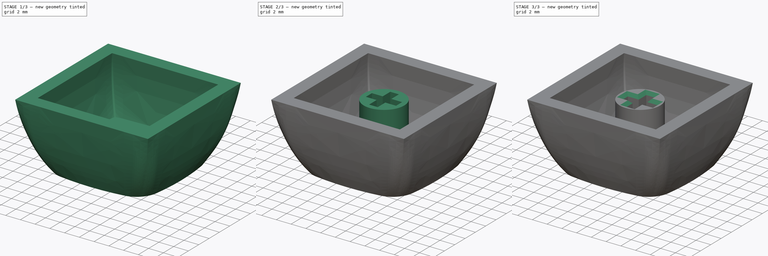
[diagram: build sequence overview — one tinted view per stage of 3, left to right]
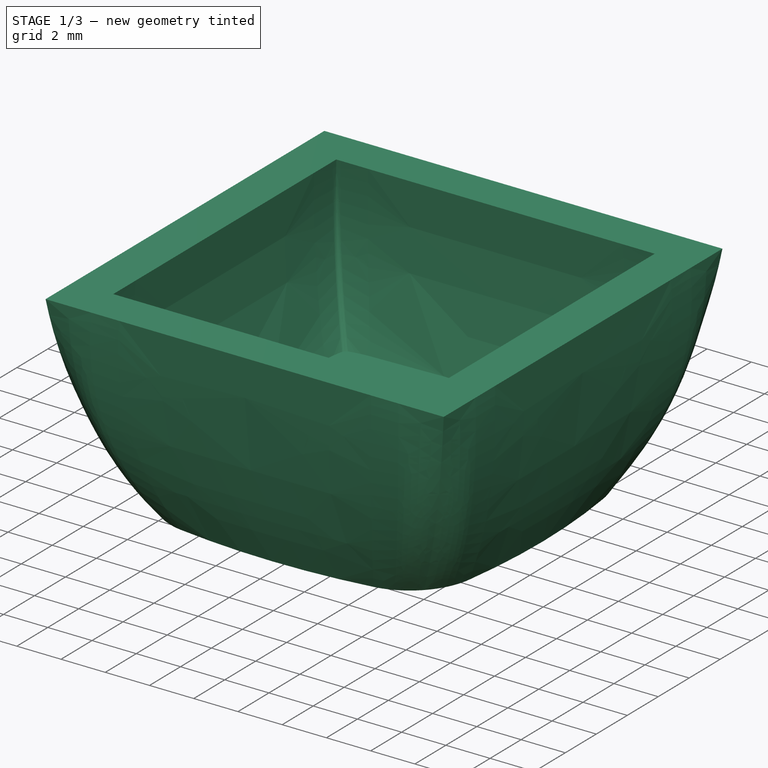
[diagram: stage 1 of 3 — iso view after this stage's code; geometry added in this stage tinted green]
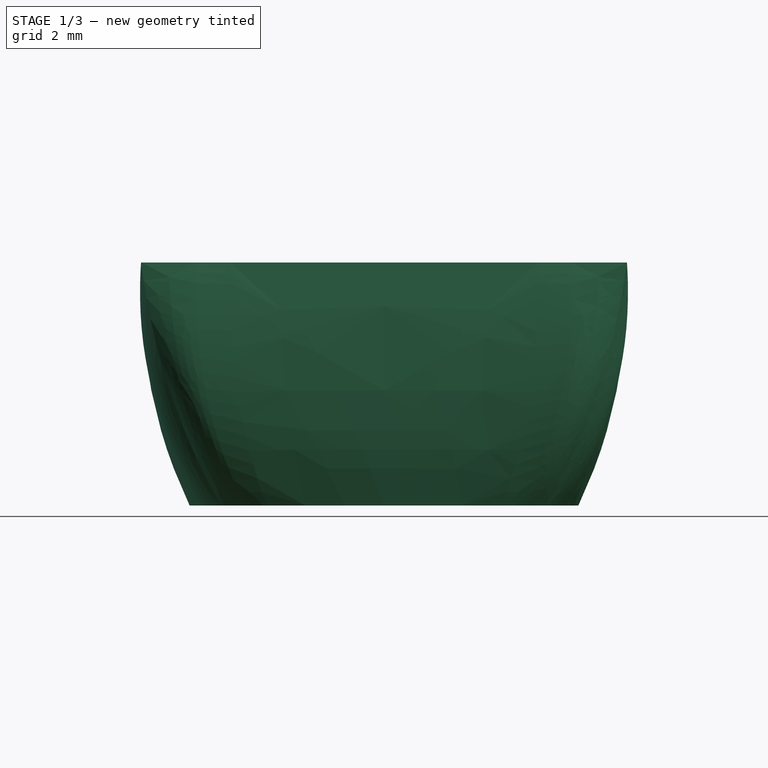
[diagram: stage 1 of 3 — front view after this stage's code; geometry added in this stage tinted green]
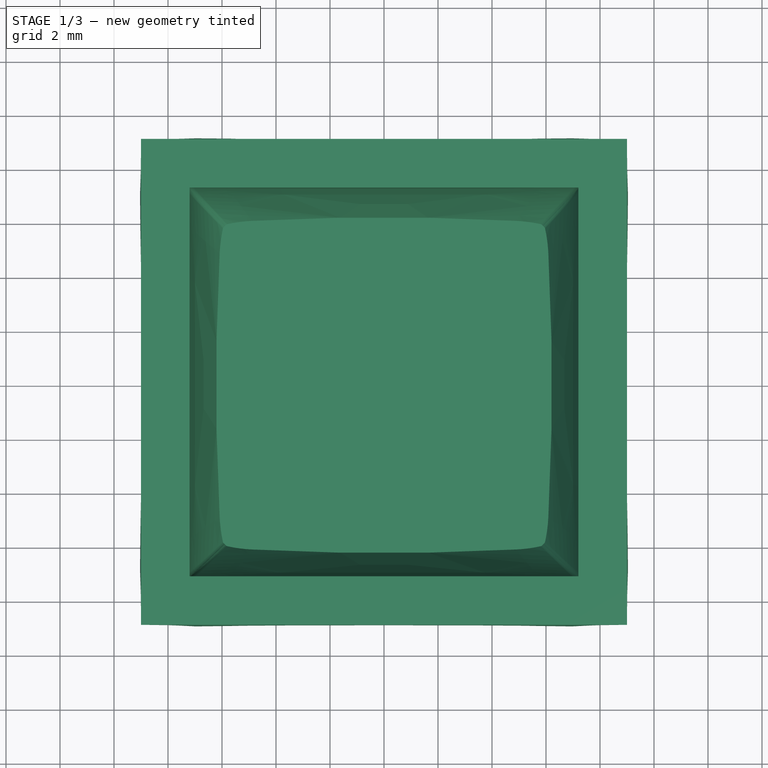
[diagram: stage 1 of 3 — top view after this stage's code; geometry added in this stage tinted green]
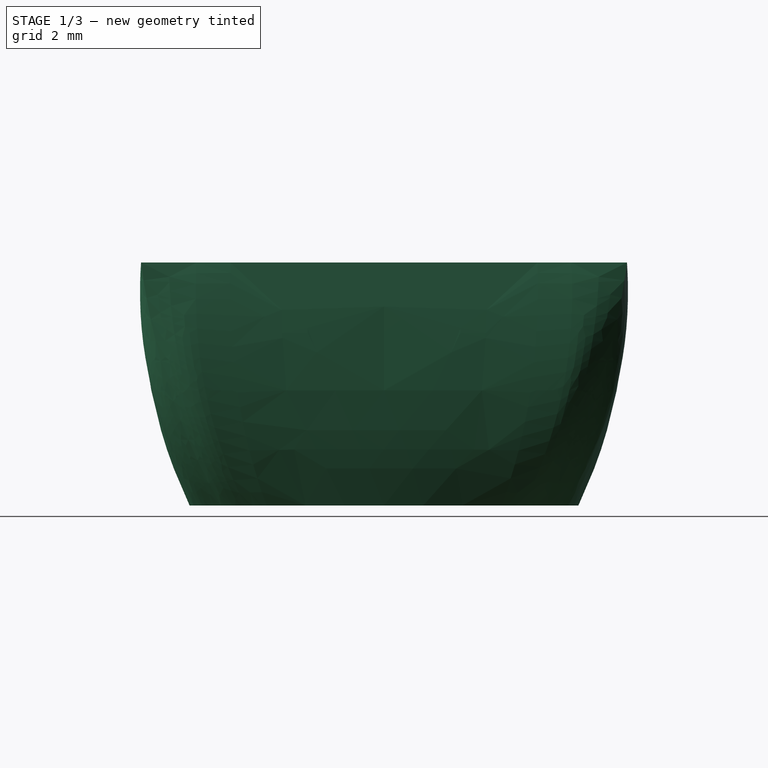
[diagram: stage 1 of 3 — right view after this stage's code; geometry added in this stage tinted green]
FCSTD DOCUMENT  (FreeCAD 1.0R38641 +678 (Git))
Label: keycap
License: All rights reserved
LicenseURL: https://en.wikipedia.org/wiki/All_rights_reserved
objects: Sketcher::SketchObject×5, PartDesign::Plane×2, PartDesign::Pad×2, PartDesign::Chamfer×2, PartDesign::AdditiveLoft×1, PartDesign::Body×1
note: 28 computed .brp shape members not serialized (recipe doc carries the construction recipe); baked Part::Feature solids carry a one-line shape summary decoded from their .brp

FEATURE [Sketcher::SketchObject] Sketch
  ArcFitTolerance = 1e-06
  AttachmentSupport = -> [XY_Plane]
  FullyConstrained = true
  MakeInternals = false
  MapMode = 5
  sketch-geometry (15):
    g0: LineSegment [constr] StartX=3.9147 StartY=3.9147 StartZ=0 EndX=-3.9147 EndY=3.9147 EndZ=0
    g1: LineSegment [constr] StartX=-3.9147 StartY=3.9147 StartZ=0 EndX=-3.9147 EndY=-3.9147 EndZ=0
    g2: LineSegment [constr] StartX=-3.9147 StartY=-3.9147 StartZ=0 EndX=3.9147 EndY=-3.9147 EndZ=0
    g3: LineSegment [constr] StartX=3.9147 StartY=-3.9147 StartZ=0 EndX=3.9147 EndY=3.9147 EndZ=0
    g4: GeomPoint [constr] X=0 Y=0 Z=0
    g5: ArcOfCircle CenterX=-3.9147 CenterY=3.9147 CenterZ=0 NormalX=0 NormalY=0 NormalZ=1 AngleXU=0 Radius=3 StartAngle=1.7163 EndAngle=2.99609
    g6: ArcOfCircle CenterX=22.8 CenterY=0 CenterZ=0 NormalX=0 NormalY=0 NormalZ=1 AngleXU=0 Radius=30 StartAngle=2.99609 EndAngle=3.28709
    g7: ArcOfCircle CenterX=-3.9147 CenterY=-3.9147 CenterZ=0 NormalX=0 NormalY=0 NormalZ=1 AngleXU=0 Radius=3 StartAngle=3.28709 EndAngle=4.56689
    g8: ArcOfCircle CenterX=-22.8 CenterY=0 CenterZ=0 NormalX=0 NormalY=0 NormalZ=1 AngleXU=0 Radius=30 StartAngle=6.13768 EndAngle=6.42869
    g9: ArcOfCircle CenterX=3.9147 CenterY=3.9147 CenterZ=0 NormalX=0 NormalY=0 NormalZ=1 AngleXU=0 Radius=3 StartAngle=0.145502 EndAngle=1.42529
    g10: GeomPoint X=-7.2 Y=0 Z=0
    g11: GeomPoint X=7.2 Y=0 Z=0
    g12: ArcOfCircle CenterX=3.9147 CenterY=-3.9147 CenterZ=0 NormalX=0 NormalY=0 NormalZ=1 AngleXU=0 Radius=3 StartAngle=4.85789 EndAngle=6.13768
    g13: ArcOfCircle CenterX=0 CenterY=-22.8 CenterZ=0 NormalX=0 NormalY=0 NormalZ=1 AngleXU=0 Radius=30 StartAngle=1.42529 EndAngle=1.7163
    g14: ArcOfCircle CenterX=0 CenterY=22.8 CenterZ=0 NormalX=0 NormalY=0 NormalZ=1 AngleXU=0 Radius=30 StartAngle=4.56689 EndAngle=4.85789
  constraints (40):
    c: Coincident(g0,g1)
    c: Coincident(g1,g2)
    c: Coincident(g2,g3)
    c: Coincident(g3,g0)
    c: Horizontal(g0)
    c: Horizontal(g2)
    c: Vertical(g1)
    c: Vertical(g3)
    c: Symmetric(g2,g0,g4)
    c: Coincident(g4,g-1)
    c: Equal(g1,g0)
    c: Coincident(g5,g0)
    c: PointOnObject(g6,g-1)
    c: Tangent(g6,g5) = -1.5708
    c: Coincident(g7,g1)
    c: Equal(g5,g7)
    c: Coincident(g6,g7)
    c: PointOnObject(g8,g-1)
    c: Equal(g6,g8)
    c: Coincident(g9,g0)
    c: Equal(g5,g9)
    c: Tangent(g9,g8) = -1.5708
    c: PointOnObject(g10,g6)
    c: PointOnObject(g10,g-1)
    c: PointOnObject(g11,g8)
    c: PointOnObject(g11,g-1)
    c: Radius(g5) = 3
    c: Distance(g11,g10) = 14.4
    c: Equal(g12,g7)
    c: Coincident(g12,g2)
    c: Coincident(g12,g8)
    c: PointOnObject(g13,g-2)
    c: Equal(g6,g13)
    c: Tangent(g13,g5) = -1.5708
    c: Coincident(g9,g13)
    c: PointOnObject(g14,g-2)
    c: Equal(g13,g14)
    c: Tangent(g14,g7) = -1.5708
    c: Coincident(g12,g14)
    c: Radius(g13) = 30
FEATURE [PartDesign::Plane] DatumPlane
  AttachmentOffset = pos=(0,0,5) rot=(0,0,1;0rad)
  AttachmentSupport = -> [XY_Plane]
  Length = 60
  MapMode = 2
  Placement = pos=(0,0,5) rot=(0,0,1;0rad)
  ResizeMode = 0
  Width = 60
FEATURE [PartDesign::Plane] DatumPlane001
  AttachmentOffset = pos=(0,0,9) rot=(0,0,1;0rad)
  AttachmentSupport = -> [XY_Plane]
  Length = 60
  MapMode = 5
  Placement = pos=(0,0,9) rot=(0,0,1;0rad)
  ResizeMode = 0
  Width = 60
FEATURE [Sketcher::SketchObject] Sketch001  label="middle"
  ArcFitTolerance = 1e-06
  AttachmentSupport = -> [DatumPlane]
  FullyConstrained = true
  MakeInternals = false
  MapMode = 5
  Placement = pos=(0,0,5) rot=(0,0,1;0rad)
  sketch-geometry (26):
    g0: LineSegment StartX=6.75 StartY=8.75 StartZ=0 EndX=-6.75 EndY=8.75 EndZ=0
    g1: LineSegment StartX=-8.75 StartY=6.75 StartZ=0 EndX=-8.75 EndY=-6.75 EndZ=0
    g2: LineSegment StartX=-6.75 StartY=-8.75 StartZ=0 EndX=6.75 EndY=-8.75 EndZ=0
    g3: LineSegment StartX=8.75 StartY=-6.75 StartZ=0 EndX=8.75 EndY=6.75 EndZ=0
    g4: GeomPoint [constr] X=0 Y=0 Z=0
    g5: ArcOfCircle CenterX=-6.75 CenterY=6.75 CenterZ=0 NormalX=0 NormalY=0 NormalZ=1 AngleXU=0 Radius=2 StartAngle=1.5708 EndAngle=3.14159
    g6: GeomPoint [constr] X=-8.75 Y=8.75 Z=0
    g7: ArcOfCircle CenterX=6.75 CenterY=6.75 CenterZ=0 NormalX=0 NormalY=0 NormalZ=1 AngleXU=0 Radius=2 StartAngle=0 EndAngle=1.5708
    g8: GeomPoint [constr] X=8.75 Y=8.75 Z=0
    g9: ArcOfCircle CenterX=6.75 CenterY=-6.75 CenterZ=0 NormalX=0 NormalY=0 NormalZ=1 AngleXU=0 Radius=2 StartAngle=4.71239 EndAngle=6.28319
    g10: GeomPoint [constr] X=8.75 Y=-8.75 Z=0
    g11: ArcOfCircle CenterX=-6.75 CenterY=-6.75 CenterZ=0 NormalX=0 NormalY=0 NormalZ=1 AngleXU=0 Radius=2 StartAngle=3.14159 EndAngle=4.71239
    g12: GeomPoint [constr] X=-8.75 Y=-8.75 Z=0
    g13: LineSegment StartX=6.75 StartY=6.95 StartZ=0 EndX=-6.75 EndY=6.95 EndZ=0
    g14: LineSegment StartX=-6.95 StartY=6.75 StartZ=0 EndX=-6.95 EndY=-6.75 EndZ=0
    g15: LineSegment StartX=-6.75 StartY=-6.95 StartZ=0 EndX=6.75 EndY=-6.95 EndZ=0
    g16: LineSegment StartX=6.95 StartY=-6.75 StartZ=0 EndX=6.95 EndY=6.75 EndZ=0
    g17: GeomPoint [constr] X=0 Y=0 Z=0
    g18: ArcOfCircle CenterX=-6.75 CenterY=6.75 CenterZ=0 NormalX=0 NormalY=0 NormalZ=1 AngleXU=0 Radius=0.2 StartAngle=1.5708 EndAngle=3.14159
    g19: GeomPoint [constr] X=-6.95 Y=6.95 Z=0
    g20: ArcOfCircle CenterX=6.75 CenterY=6.75 CenterZ=0 NormalX=0 NormalY=0 NormalZ=1 AngleXU=0 Radius=0.2 StartAngle=5.0196e-11 EndAngle=1.5708
    g21: GeomPoint [constr] X=6.95 Y=6.95 Z=0
    g22: ArcOfCircle CenterX=6.75 CenterY=-6.75 CenterZ=0 NormalX=0 NormalY=0 NormalZ=1 AngleXU=0 Radius=0.2 StartAngle=4.71239 EndAngle=6.28319
    g23: GeomPoint [constr] X=6.95 Y=-6.95 Z=0
    g24: ArcOfCircle CenterX=-6.75 CenterY=-6.75 CenterZ=0 NormalX=0 NormalY=0 NormalZ=1 AngleXU=0 Radius=0.2 StartAngle=3.14159 EndAngle=4.71239
    g25: GeomPoint [constr] X=-6.95 Y=-6.95 Z=0
  constraints (56):
    c: Horizontal(g0)
    c: Horizontal(g2)
    c: Vertical(g1)
    c: Vertical(g3)
    c: Symmetric(g12,g8,g4)
    c: Coincident(g4,g-1)
    c: PointOnObject(g6,g0)
    c: PointOnObject(g6,g1)
    c: Tangent(g0,g5) = -1.5708
    c: Tangent(g1,g5) = -1.5708
    c: PointOnObject(g8,g0)
    c: PointOnObject(g8,g3)
    c: Tangent(g0,g7) = -1.5708
    c: Tangent(g3,g7) = -1.5708
    c: PointOnObject(g10,g3)
    c: PointOnObject(g10,g2)
    c: Tangent(g3,g9) = -1.5708
    c: Tangent(g2,g9) = -1.5708
    c: PointOnObject(g12,g2)
    c: PointOnObject(g12,g1)
    c: Tangent(g2,g11) = -1.5708
    c: Tangent(g1,g11) = -1.5708
    c: Equal(g5,g7)
    c: Equal(g7,g9)
    c: Equal(g9,g11)
    c: Distance(g3,g1) = 17.5
    c: Equal(g0,g1)
    c: Radius(g5) = 2
    c: Horizontal(g13)
    c: Horizontal(g15)
    c: Vertical(g14)
    c: Vertical(g16)
    c: Symmetric(g25,g21,g17)
    c: Coincident(g17,g4)
    c: PointOnObject(g19,g13)
    c: PointOnObject(g19,g14)
    c: Tangent(g13,g18) = -1.5708
    c: Tangent(g14,g18) = -1.5708
    c: PointOnObject(g21,g13)
    c: PointOnObject(g21,g16)
    c: Tangent(g13,g20) = -1.5708
    c: Tangent(g16,g20) = -1.5708
    c: PointOnObject(g23,g16)
    c: PointOnObject(g23,g15)
    c: Tangent(g16,g22) = -1.5708
    c: Tangent(g15,g22) = -1.5708
    c: PointOnObject(g25,g15)
    c: PointOnObject(g25,g14)
    c: Tangent(g15,g24) = -1.5708
    c: Tangent(g14,g24) = -1.5708
    c: Equal(g24,g18)
    c: Equal(g18,g20)
    c: Equal(g20,g22)
    c: Equal(g14,g13)
    c: Distance(g13,g0) = 1.8
    c: Radius(g18) = 0.2
FEATURE [Sketcher::SketchObject] Sketch002  label="bottom"
  ArcFitTolerance = 1e-06
  AttachmentSupport = -> [DatumPlane001]
  FullyConstrained = true
  MakeInternals = false
  MapMode = 5
  Placement = pos=(0,0,9) rot=(0,0,1;0rad)
  sketch-geometry (10):
    g0: LineSegment StartX=9 StartY=9 StartZ=0 EndX=-9 EndY=9 EndZ=0
    g1: LineSegment StartX=-9 StartY=9 StartZ=0 EndX=-9 EndY=-9 EndZ=0
    g2: LineSegment StartX=-9 StartY=-9 StartZ=0 EndX=9 EndY=-9 EndZ=0
    g3: LineSegment StartX=9 StartY=-9 StartZ=0 EndX=9 EndY=9 EndZ=0
    g4: GeomPoint [constr] X=0 Y=0 Z=0
    g5: LineSegment StartX=7.2 StartY=7.2 StartZ=0 EndX=-7.2 EndY=7.2 EndZ=0
    g6: LineSegment StartX=-7.2 StartY=7.2 StartZ=0 EndX=-7.2 EndY=-7.2 EndZ=0
    g7: LineSegment StartX=-7.2 StartY=-7.2 StartZ=0 EndX=7.2 EndY=-7.2 EndZ=0
    g8: LineSegment StartX=7.2 StartY=-7.2 StartZ=0 EndX=7.2 EndY=7.2 EndZ=0
    g9: GeomPoint [constr] X=0 Y=0 Z=0
  constraints (24):
    c: Coincident(g0,g1)
    c: Coincident(g1,g2)
    c: Coincident(g2,g3)
    c: Coincident(g3,g0)
    c: Horizontal(g0)
    c: Horizontal(g2)
    c: Vertical(g1)
    c: Vertical(g3)
    c: Symmetric(g2,g0,g4)
    c: Coincident(g4,g-1)
    c: Equal(g0,g1)
    c: DistanceX(g0,g0) = 18
    c: Coincident(g5,g6)
    c: Coincident(g6,g7)
    c: Coincident(g7,g8)
    c: Coincident(g8,g5)
    c: Horizontal(g5)
    c: Horizontal(g7)
    c: Vertical(g6)
    c: Vertical(g8)
    c: Symmetric(g7,g5,g9)
    c: Coincident(g9,g4)
    c: Equal(g5,g6)
    c: Distance(g0,g5) = 1.8
FEATURE [Sketcher::SketchObject] Sketch003  label="top"
  ArcFitTolerance = 1e-06
  AttachmentSupport = -> [XY_Plane]
  FullyConstrained = true
  MakeInternals = false
  MapMode = 5
  sketch-geometry (23):
    g0: LineSegment [constr] StartX=3.9147 StartY=3.9147 StartZ=0 EndX=-3.9147 EndY=3.9147 EndZ=0
    g1: LineSegment [constr] StartX=-3.9147 StartY=3.9147 StartZ=0 EndX=-3.9147 EndY=-3.9147 EndZ=0
    g2: LineSegment [constr] StartX=-3.9147 StartY=-3.9147 StartZ=0 EndX=3.9147 EndY=-3.9147 EndZ=0
    g3: LineSegment [constr] StartX=3.9147 StartY=-3.9147 StartZ=0 EndX=3.9147 EndY=3.9147 EndZ=0
    g4: GeomPoint [constr] X=0 Y=0 Z=0
    g5: ArcOfCircle CenterX=-3.9147 CenterY=3.9147 CenterZ=0 NormalX=0 NormalY=0 NormalZ=1 AngleXU=0 Radius=3 StartAngle=1.7163 EndAngle=2.99609
    g6: ArcOfCircle CenterX=22.8 CenterY=0 CenterZ=0 NormalX=0 NormalY=0 NormalZ=1 AngleXU=0 Radius=30 StartAngle=2.99609 EndAngle=3.28709
    g7: ArcOfCircle CenterX=-3.9147 CenterY=-3.9147 CenterZ=0 NormalX=0 NormalY=0 NormalZ=1 AngleXU=0 Radius=3 StartAngle=3.28709 EndAngle=4.56689
    g8: ArcOfCircle CenterX=-22.8 CenterY=0 CenterZ=0 NormalX=0 NormalY=0 NormalZ=1 AngleXU=0 Radius=30 StartAngle=6.13768 EndAngle=6.42869
    g9: ArcOfCircle CenterX=3.9147 CenterY=3.9147 CenterZ=0 NormalX=0 NormalY=0 NormalZ=1 AngleXU=0 Radius=3 StartAngle=0.145502 EndAngle=1.42529
    g10: GeomPoint X=-7.2 Y=0 Z=0
    g11: GeomPoint X=7.2 Y=0 Z=0
    g12: ArcOfCircle CenterX=3.9147 CenterY=-3.9147 CenterZ=0 NormalX=0 NormalY=0 NormalZ=1 AngleXU=0 Radius=3 StartAngle=4.85789 EndAngle=6.13768
    g13: ArcOfCircle CenterX=0 CenterY=-22.8 CenterZ=0 NormalX=0 NormalY=0 NormalZ=1 AngleXU=0 Radius=30 StartAngle=1.42529 EndAngle=1.7163
    g14: ArcOfCircle CenterX=0 CenterY=22.8 CenterZ=0 NormalX=0 NormalY=0 NormalZ=1 AngleXU=0 Radius=30 StartAngle=4.56689 EndAngle=4.85789
    g15: ArcOfCircle CenterX=1.2e-15 CenterY=22.8 CenterZ=0 NormalX=0 NormalY=0 NormalZ=1 AngleXU=0 Radius=28.2 StartAngle=4.56689 EndAngle=4.85789
    g16: ArcOfCircle CenterX=3.9147 CenterY=-3.9147 CenterZ=0 NormalX=0 NormalY=0 NormalZ=1 AngleXU=0 Radius=1.2 StartAngle=4.85789 EndAngle=6.13768
    g17: ArcOfCircle CenterX=-22.8 CenterY=8e-16 CenterZ=0 NormalX=0 NormalY=0 NormalZ=1 AngleXU=0 Radius=28.2 StartAngle=6.13768 EndAngle=6.42869
    g18: ArcOfCircle CenterX=3.9147 CenterY=3.9147 CenterZ=0 NormalX=0 NormalY=0 NormalZ=1 AngleXU=0 Radius=1.2 StartAngle=0.145502 EndAngle=1.42529
    g19: ArcOfCircle CenterX=0 CenterY=-22.8 CenterZ=0 NormalX=0 NormalY=0 NormalZ=1 AngleXU=0 Radius=28.2 StartAngle=1.42529 EndAngle=1.7163
    g20: ArcOfCircle CenterX=-3.9147 CenterY=3.9147 CenterZ=0 NormalX=0 NormalY=0 NormalZ=1 AngleXU=0 Radius=1.2 StartAngle=1.7163 EndAngle=2.99609
    g21: ArcOfCircle CenterX=22.8 CenterY=-6.5e-15 CenterZ=0 NormalX=0 NormalY=0 NormalZ=1 AngleXU=0 Radius=28.2 StartAngle=2.99609 EndAngle=3.28709
    g22: ArcOfCircle CenterX=-3.9147 CenterY=-3.9147 CenterZ=0 NormalX=0 NormalY=0 NormalZ=1 AngleXU=0 Radius=1.2 StartAngle=3.28709 EndAngle=4.56689
  constraints (60):
    c: Coincident(g0,g1)
    c: Coincident(g1,g2)
    c: Coincident(g2,g3)
    c: Coincident(g3,g0)
    c: Horizontal(g0)
    c: Horizontal(g2)
    c: Vertical(g1)
    c: Vertical(g3)
    c: Symmetric(g2,g0,g4)
    c: Coincident(g4,g-1)
    c: Equal(g1,g0)
    c: Coincident(g5,g0)
    c: PointOnObject(g6,g-1)
    c: Tangent(g6,g5) = -1.5708
    c: Coincident(g7,g1)
    c: Equal(g5,g7)
    c: PointOnObject(g8,g-1)
    c: Equal(g6,g8)
    c: Coincident(g9,g0)
    c: Equal(g5,g9)
    c: Tangent(g9,g8) = -1.5708
    c: PointOnObject(g10,g6)
    c: PointOnObject(g10,g-1)
    c: PointOnObject(g11,g8)
    c: PointOnObject(g11,g-1)
    c: Equal(g12,g7)
    c: Coincident(g12,g2)
    c: Coincident(g12,g8)
    c: PointOnObject(g13,g-2)
    c: Equal(g6,g13)
    c: Tangent(g13,g5) = -1.5708
    c: Coincident(g9,g13)
    c: PointOnObject(g14,g-2)
    c: Equal(g13,g14)
    c: Tangent(g14,g7) = -1.5708
    c: Coincident(g12,g14)
    c: Coincident(g6,g7)
    c: Tangent(g15,g22) = -1.5708
    c: Tangent(g17,g18) = -1.5708
    c: Tangent(g18,g19) = -1.5708
    c: Tangent(g19,g20) = -1.5708
    c: Tangent(g20,g21) = -1.5708
    c: Coincident(g20,g0)
    c: Tangent(g22,g21) = -1.5708
    c: Tangent(g17,g16) = -1.5708
    c: Tangent(g15,g16) = -1.5708
    c: Coincident(g16,g2)
    c: Coincident(g18,g0)
    c: Equal(g20,g18)
    c: Equal(g18,g16)
    c: Equal(g16,g22)
    c: Radius(g20) = 1.2
    c: Equal(g19,g17)
    c: Equal(g17,g21)
    c: Equal(g21,g15)
    c: Coincident(g1,g22)
    c: Radius(g5) = 3
    c: Distance(g10,g11) = 14.4
    c: Radius(g13) = 30
    c: Radius(g19) = 28.2
FEATURE [PartDesign::AdditiveLoft] AdditiveLoft
  Closed = false
  Profile = -> Sketch003
  Refine = true
  Ruled = false
  Sections = -> [Sketch001,Sketch002]
  Suppressed = false
FEATURE [PartDesign::Pad] Pad
  BaseFeature = -> AdditiveLoft
  Direction = (0,0,1)
  Length = 2
  Length2 = 10
  Profile = -> Sketch
  ReferenceAxis = -> Sketch [N_Axis]
  Refine = true
  Suppressed = false
  Type = 0
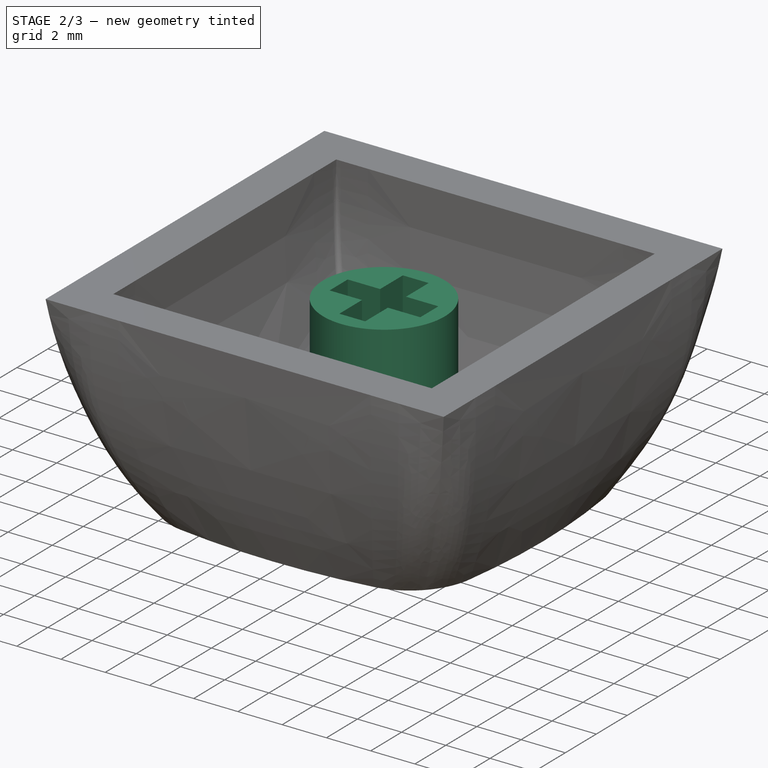
[diagram: stage 2 of 3 — iso view after this stage's code; geometry added in this stage tinted green]
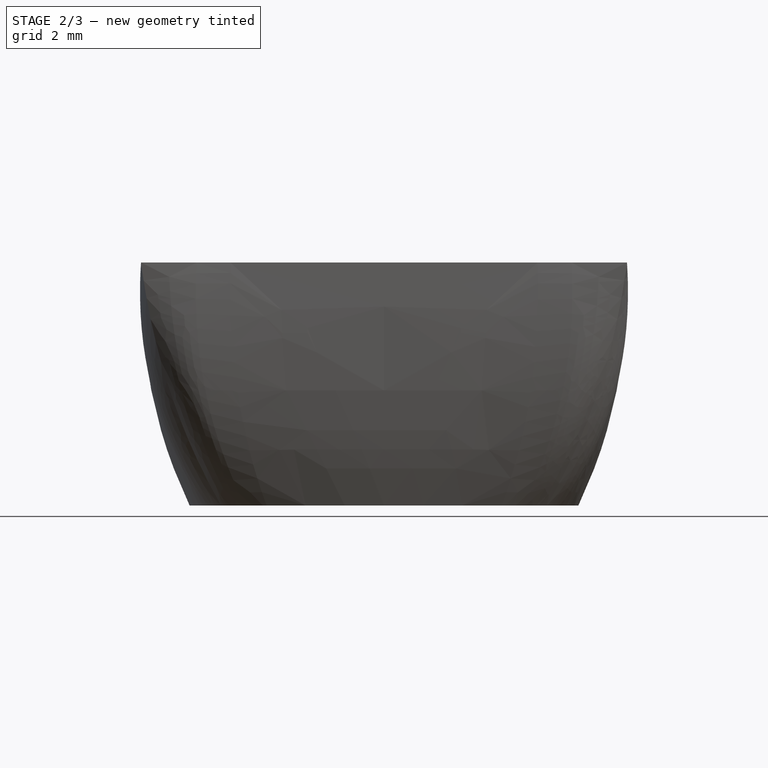
[diagram: stage 2 of 3 — front view after this stage's code; geometry added in this stage tinted green]
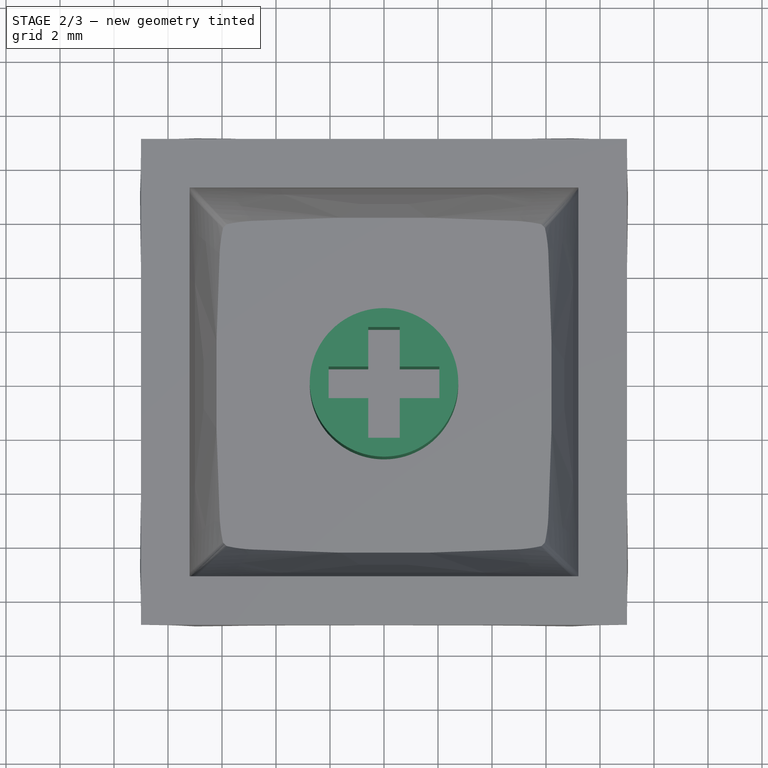
[diagram: stage 2 of 3 — top view after this stage's code; geometry added in this stage tinted green]
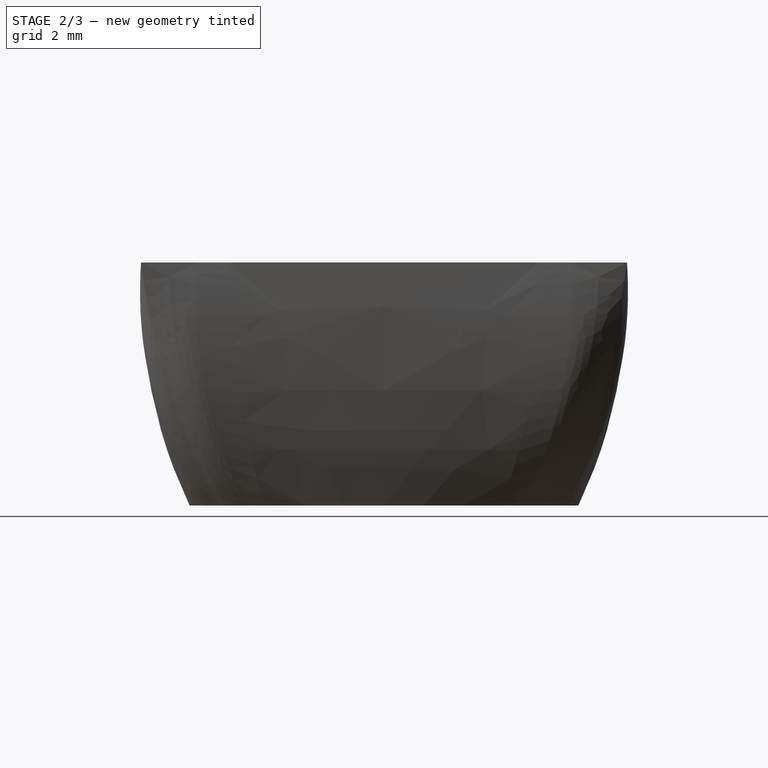
[diagram: stage 2 of 3 — right view after this stage's code; geometry added in this stage tinted green]
FEATURE [Sketcher::SketchObject] Sketch004
  ArcFitTolerance = 1e-06
  AttachmentSupport = -> [XY_Plane]
  FullyConstrained = true
  MakeInternals = false
  MapMode = 5
  sketch-geometry (19):
    g0: Circle CenterX=0 CenterY=0 CenterZ=0 NormalX=0 NormalY=0 NormalZ=1 AngleXU=0 Radius=2.75
    g1: LineSegment [constr] StartX=2.05 StartY=0.585 StartZ=0 EndX=-2.05 EndY=0.585 EndZ=0
    g2: LineSegment StartX=-2.05 StartY=0.585 StartZ=0 EndX=-2.05 EndY=-0.585 EndZ=0
    g3: LineSegment [constr] StartX=-2.05 StartY=-0.585 StartZ=0 EndX=2.05 EndY=-0.585 EndZ=0
    g4: LineSegment StartX=2.05 StartY=-0.585 StartZ=0 EndX=2.05 EndY=0.585 EndZ=0
    g5: GeomPoint [constr] X=0 Y=0 Z=0
    g6: LineSegment StartX=0.585 StartY=2.05 StartZ=0 EndX=-0.585 EndY=2.05 EndZ=0
    g7: LineSegment [constr] StartX=-0.585 StartY=2.05 StartZ=0 EndX=-0.585 EndY=-2.05 EndZ=0
    g8: LineSegment StartX=-0.585 StartY=-2.05 StartZ=0 EndX=0.585 EndY=-2.05 EndZ=0
    g9: LineSegment [constr] StartX=0.585 StartY=-2.05 StartZ=0 EndX=0.585 EndY=2.05 EndZ=0
    g10: GeomPoint [constr] X=0 Y=0 Z=0
    g11: LineSegment StartX=-2.05 StartY=0.585 StartZ=0 EndX=-0.585 EndY=0.585 EndZ=0
    g12: LineSegment StartX=-0.585 StartY=0.585 StartZ=0 EndX=-0.585 EndY=2.05 EndZ=0
    g13: LineSegment StartX=-2.05 StartY=-0.585 StartZ=0 EndX=-0.585 EndY=-0.585 EndZ=0
    g14: LineSegment StartX=-0.585 StartY=-0.585 StartZ=0 EndX=-0.585 EndY=-2.05 EndZ=0
    g15: LineSegment StartX=2.05 StartY=-0.585 StartZ=0 EndX=0.585 EndY=-0.585 EndZ=0
    g16: LineSegment StartX=0.585 StartY=-0.585 StartZ=0 EndX=0.585 EndY=-2.05 EndZ=0
    g17: LineSegment StartX=2.05 StartY=0.585 StartZ=0 EndX=0.585 EndY=0.585 EndZ=0
    g18: LineSegment StartX=0.585 StartY=0.585 StartZ=0 EndX=0.585 EndY=2.05 EndZ=0
  constraints (46):
    c: Coincident(g0,g-1)
    c: Diameter(g0) = 5.5
    c: Coincident(g1,g2)
    c: Coincident(g2,g3)
    c: Coincident(g3,g4)
    c: Coincident(g4,g1)
    c: Horizontal(g1)
    c: Horizontal(g3)
    c: Vertical(g2)
    c: Vertical(g4)
    c: Symmetric(g3,g1,g5)
    c: Coincident(g5,g0)
    c: Coincident(g6,g7)
    c: Coincident(g7,g8)
    c: Coincident(g8,g9)
    c: Coincident(g9,g6)
    c: Horizontal(g6)
    c: Horizontal(g8)
    c: Vertical(g7)
    c: Vertical(g9)
    c: Symmetric(g8,g6,g10)
    c: Coincident(g10,g0)
    c: Equal(g6,g2)
    c: Equal(g7,g1)
    c: Coincident(g11,g1)
    c: PointOnObject(g11,g7)
    c: Horizontal(g11)
    c: Coincident(g12,g11)
    c: Coincident(g12,g6)
    c: DistanceX(g3,g3) = 4.1
    c: Distance(g2,g2) = 1.17
    c: Coincident(g13,g2)
    c: PointOnObject(g13,g7)
    c: Horizontal(g13)
    c: Coincident(g14,g13)
    c: Coincident(g14,g7)
    c: Coincident(g15,g3)
    c: PointOnObject(g15,g9)
    c: Horizontal(g15)
    c: Coincident(g16,g15)
    c: Coincident(g16,g8)
    c: Coincident(g17,g1)
    c: PointOnObject(g17,g9)
    c: Horizontal(g17)
    c: Coincident(g18,g17)
    c: Coincident(g18,g6)
FEATURE [PartDesign::Pad] Pad001
  BaseFeature = -> Pad
  Direction = (0,0,1)
  Length = 8
  Length2 = 10
  Profile = -> Sketch004
  ReferenceAxis = -> Sketch004 [N_Axis]
  Refine = true
  Suppressed = false
  Type = 0
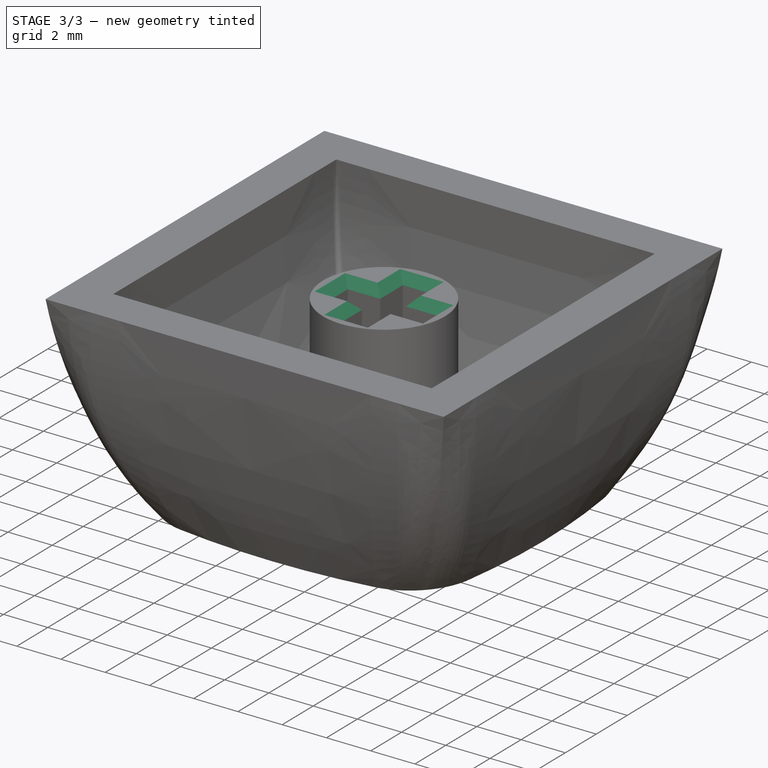
[diagram: stage 3 of 3 — iso view after this stage's code; geometry added in this stage tinted green]
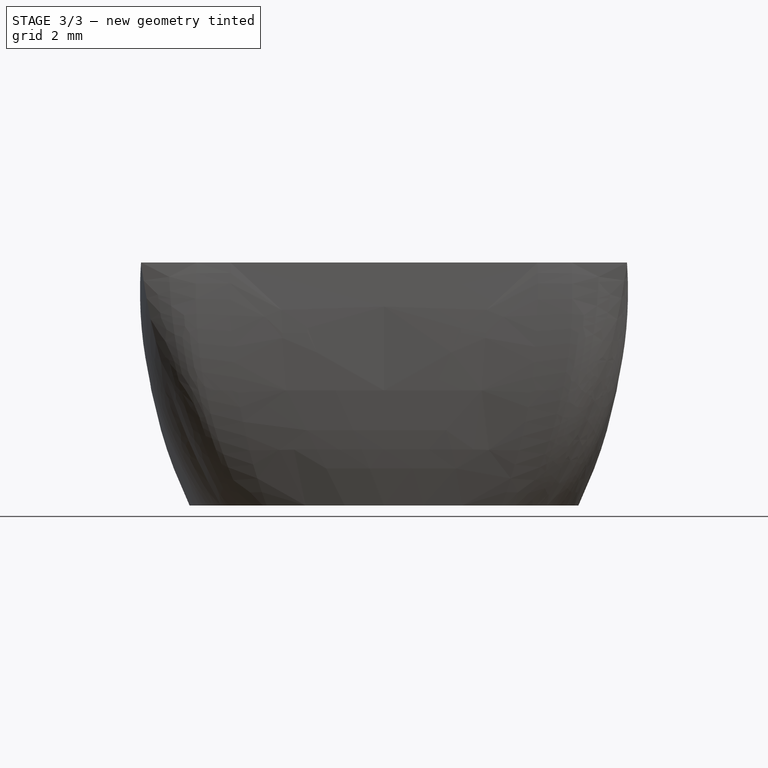
[diagram: stage 3 of 3 — front view after this stage's code; geometry added in this stage tinted green]
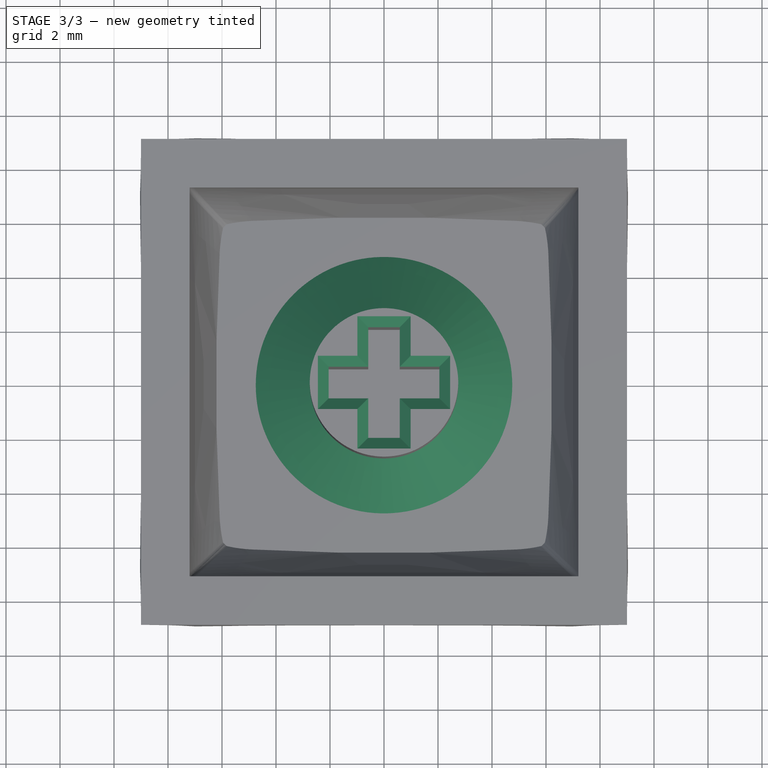
[diagram: stage 3 of 3 — top view after this stage's code; geometry added in this stage tinted green]
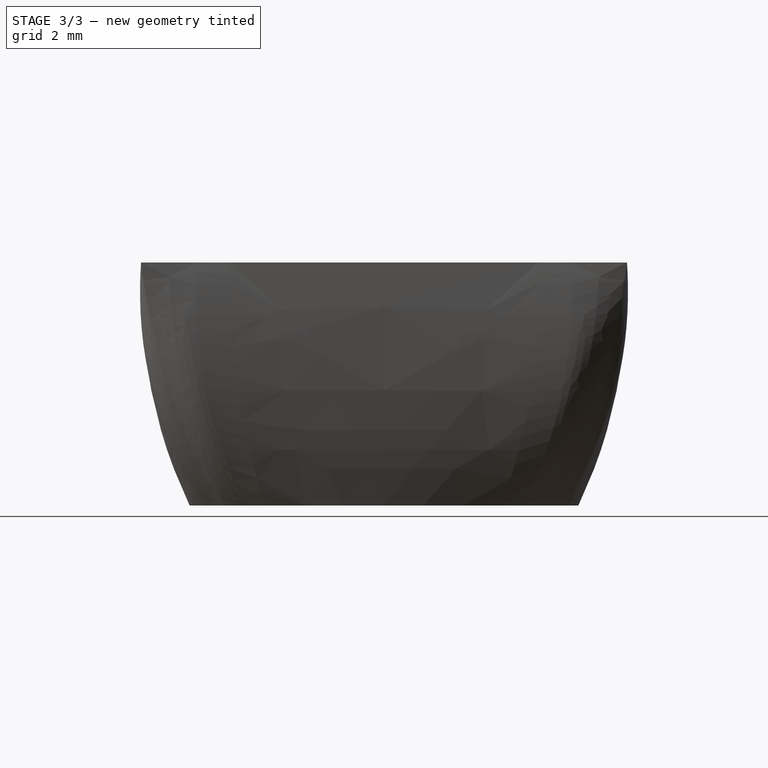
[diagram: stage 3 of 3 — right view after this stage's code; geometry added in this stage tinted green]
FEATURE [PartDesign::Chamfer] Chamfer
  Angle = 45
  Base = -> Pad001 [Edge121]
  BaseFeature = -> Pad001
  ChamferType = 0
  FlipDirection = false
  Refine = true
  Size = 2
  Size2 = 1
  SupportTransform = false
  Suppressed = false
  UseAllEdges = false
FEATURE [PartDesign::Chamfer] Chamfer001
  Angle = 45
  Base = -> Chamfer [Edge87,Edge86,Edge88,Edge89,Edge90,Edge91,Edge92,Edge93,Edge94,Edge95,Edge97,Edge96]
  BaseFeature = -> Chamfer
  ChamferType = 0
  FlipDirection = false
  Refine = true
  Size = 0.4
  Size2 = 1
  SupportTransform = false
  Suppressed = false
  UseAllEdges = false
FEATURE [PartDesign::Body] Body
  AllowCompound = false
  Group = -> [Sketch,DatumPlane,DatumPlane001,Sketch003,Sketch001,Sketch002,AdditiveLoft,Pad,Sketch004,Pad001,Chamfer,Chamfer001]
  Origin = -> Origin
  Tip = -> Chamfer001
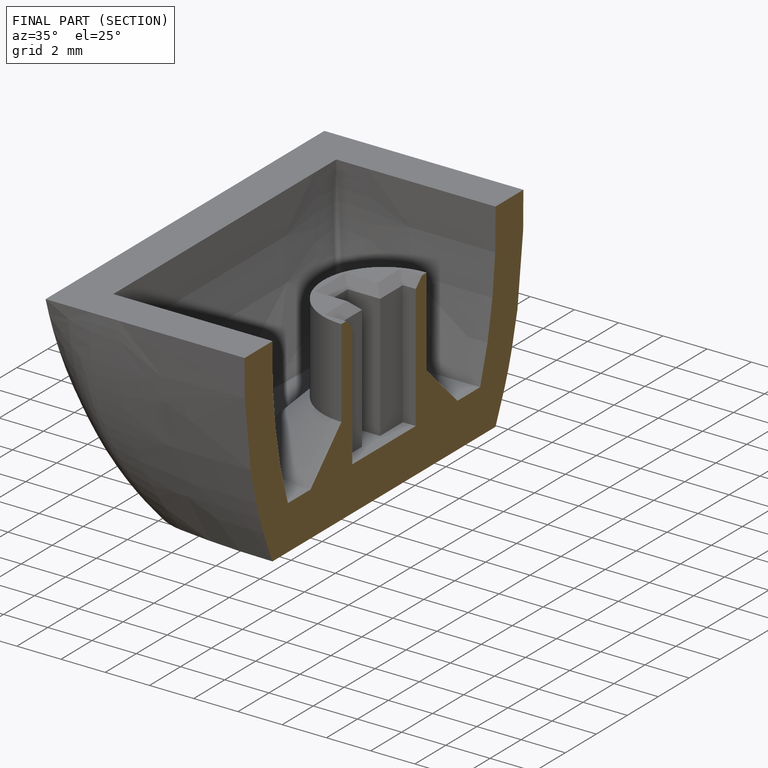
[diagram: finished part — half-section view (interior)]
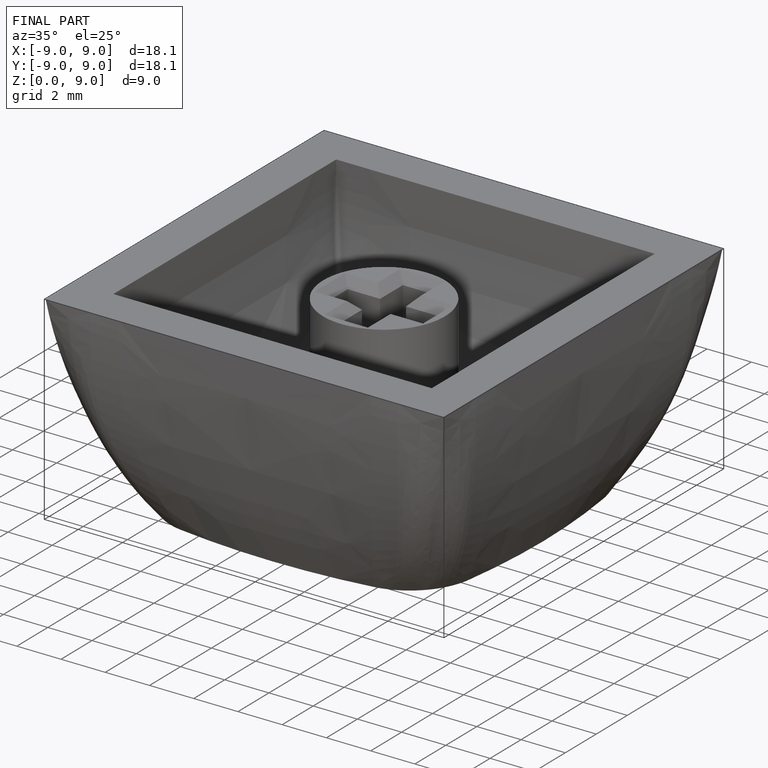
[diagram: finished part — iso view with bounding-box wireframe]
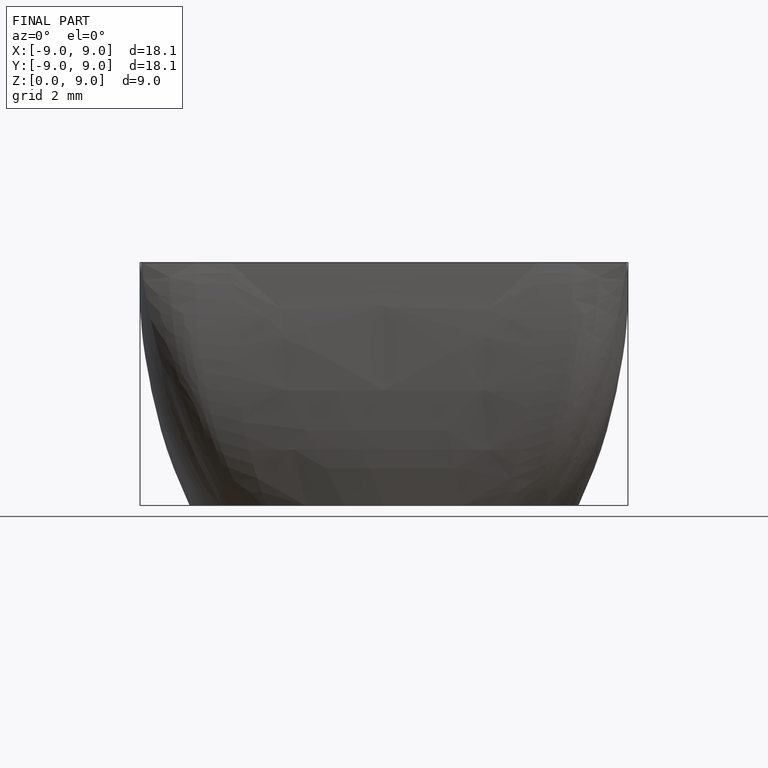
[diagram: finished part — front view with bounding-box wireframe]
